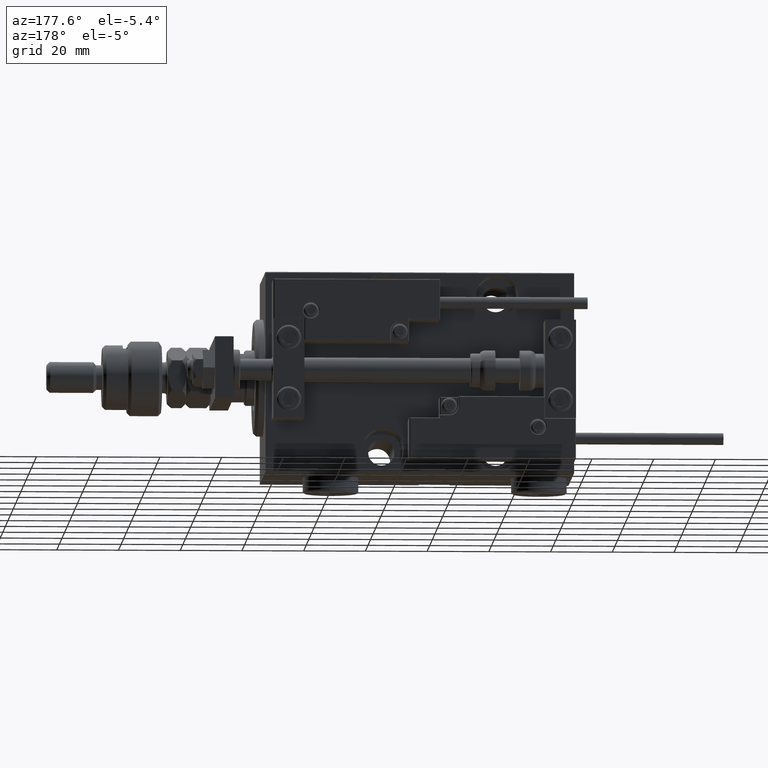
[diagram: clean part render]
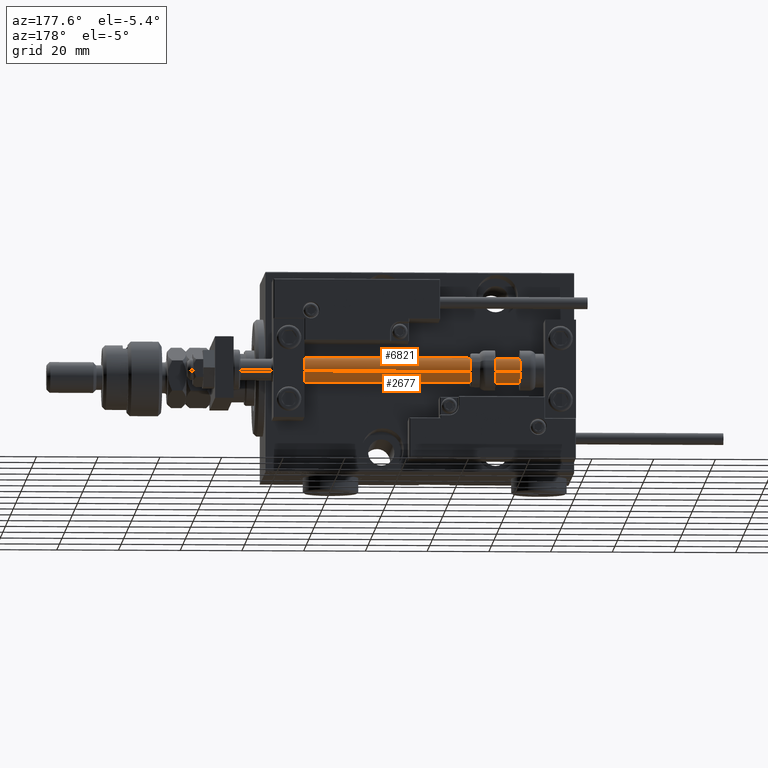
[diagram: same view with one multi-face feature highlighted, each face labeled with its STEP entity id]
A machine part, auxiliary view. The highlighted faces form ONE feature: a constant-radius fillet chain: 2 tangent blend faces with common blend radius 4 mm. The faces share edges in the B-rep.
Their STEP definitions:
[1] entity #6821 (Cylinder):
#342 = DIRECTION ( 'NONE',  ( -0.000000000000000000, -0.000000000000000000, 1.000000000000000000 ) ) ;
#662 = ORIENTED_EDGE ( 'NONE', *, *, #35240, .T. ) ;
#1305 = CARTESIAN_POINT ( 'NONE',  ( 4.000000000000000000, 4.898587196589412829E-16, 100.0000000000000000 ) ) ;
#2486 = DIRECTION ( 'NONE',  ( -0.000000000000000000, -0.000000000000000000, -1.000000000000000000 ) ) ;
#2565 = CARTESIAN_POINT ( 'NONE',  ( 4.000000000000000000, 4.898587196589412829E-16, 100.0000000000000000 ) ) ;
#3457 = VERTEX_POINT ( 'NONE', #48047 ) ;
#6481 = EDGE_CURVE ( 'NONE', #3457, #10838, #49209, .T. ) ;
#6821 = ADVANCED_FACE ( 'NONE', ( #36511 ), #40906, .T. ) ;
#7213 = DIRECTION ( 'NONE',  ( -0.000000000000000000, -0.000000000000000000, -1.000000000000000000 ) ) ;
#10838 = VERTEX_POINT ( 'NONE', #32742 ) ;
#11031 = CARTESIAN_POINT ( 'NONE',  ( -4.000000000000000000, 0.000000000000000000, 100.0000000000000000 ) ) ;
#11876 = AXIS2_PLACEMENT_3D ( 'NONE', #12099, #53020, #53825 ) ;
#12099 = CARTESIAN_POINT ( 'NONE',  ( 0.000000000000000000, 0.000000000000000000, 100.0000000000000000 ) ) ;
#13309 = EDGE_LOOP ( 'NONE', ( #35083, #48028, #23718, #662 ) ) ;
#15267 = VERTEX_POINT ( 'NONE', #20793 ) ;
#15605 = CARTESIAN_POINT ( 'NONE',  ( 0.000000000000000000, 0.000000000000000000, 100.0000000000000000 ) ) ;
#17323 = VECTOR ( 'NONE', #7213, 1000.000000000000000 ) ;
#20758 = CIRCLE ( 'NONE', #31259, 4.000000000000000000 ) ;
#20793 = CARTESIAN_POINT ( 'NONE',  ( 4.000000000000000000, 4.898587196589412829E-16, 2.000000000000029310 ) ) ;
#21690 = CARTESIAN_POINT ( 'NONE',  ( 0.000000000000000000, 0.000000000000000000, 2.000000000000029310 ) ) ;
#23718 = ORIENTED_EDGE ( 'NONE', *, *, #6481, .T. ) ;
#24031 = CIRCLE ( 'NONE', #11876, 4.000000000000000000 ) ;
#25078 = VECTOR ( 'NONE', #42223, 1000.000000000000000 ) ;
#28008 = DIRECTION ( 'NONE',  ( -1.000000000000000000, 0.000000000000000000, 0.000000000000000000 ) ) ;
#31259 = AXIS2_PLACEMENT_3D ( 'NONE', #21690, #342, #38470 ) ;
#32742 = CARTESIAN_POINT ( 'NONE',  ( -4.000000000000000000, 0.000000000000000000, 2.000000000000029310 ) ) ;
#33343 = EDGE_CURVE ( 'NONE', #36324, #15267, #51501, .T. ) ;
#35083 = ORIENTED_EDGE ( 'NONE', *, *, #33343, .F. ) ;
#35240 = EDGE_CURVE ( 'NONE', #10838, #15267, #20758, .T. ) ;
#36324 = VERTEX_POINT ( 'NONE', #2565 ) ;
#36511 = FACE_OUTER_BOUND ( 'NONE', #13309, .T. ) ;
#38470 = DIRECTION ( 'NONE',  ( 1.000000000000000000, 0.000000000000000000, 0.000000000000000000 ) ) ;
#40753 = EDGE_CURVE ( 'NONE', #3457, #36324, #24031, .T. ) ;
#40906 = CYLINDRICAL_SURFACE ( 'NONE', #44551, 4.000000000000000000 ) ;
#42223 = DIRECTION ( 'NONE',  ( -0.000000000000000000, -0.000000000000000000, -1.000000000000000000 ) ) ;
#44551 = AXIS2_PLACEMENT_3D ( 'NONE', #15605, #2486, #28008 ) ;
#48028 = ORIENTED_EDGE ( 'NONE', *, *, #40753, .F. ) ;
#48047 = CARTESIAN_POINT ( 'NONE',  ( -4.000000000000000000, 0.000000000000000000, 100.0000000000000000 ) ) ;
#49209 = LINE ( 'NONE', #11031, #17323 ) ;
#51501 = LINE ( 'NONE', #1305, #25078 ) ;
#53020 = DIRECTION ( 'NONE',  ( 0.000000000000000000, 0.000000000000000000, 1.000000000000000000 ) ) ;
#53825 = DIRECTION ( 'NONE',  ( 1.000000000000000000, 0.000000000000000000, 0.000000000000000000 ) ) ;
[2] entity #2677 (Cylinder):
#1305 = CARTESIAN_POINT ( 'NONE',  ( 4.000000000000000000, 4.898587196589412829E-16, 100.0000000000000000 ) ) ;
#2565 = CARTESIAN_POINT ( 'NONE',  ( 4.000000000000000000, 4.898587196589412829E-16, 100.0000000000000000 ) ) ;
#2677 = ADVANCED_FACE ( 'NONE', ( #21076 ), #41692, .T. ) ;
#3457 = VERTEX_POINT ( 'NONE', #48047 ) ;
#3475 = DIRECTION ( 'NONE',  ( 0.000000000000000000, 0.000000000000000000, 1.000000000000000000 ) ) ;
#4365 = DIRECTION ( 'NONE',  ( -1.000000000000000000, 0.000000000000000000, 0.000000000000000000 ) ) ;
#6481 = EDGE_CURVE ( 'NONE', #3457, #10838, #49209, .T. ) ;
#7213 = DIRECTION ( 'NONE',  ( -0.000000000000000000, -0.000000000000000000, -1.000000000000000000 ) ) ;
#8464 = CARTESIAN_POINT ( 'NONE',  ( 0.000000000000000000, 0.000000000000000000, 100.0000000000000000 ) ) ;
#10838 = VERTEX_POINT ( 'NONE', #32742 ) ;
#11031 = CARTESIAN_POINT ( 'NONE',  ( -4.000000000000000000, 0.000000000000000000, 100.0000000000000000 ) ) ;
#11888 = ORIENTED_EDGE ( 'NONE', *, *, #14951, .T. ) ;
#12227 = AXIS2_PLACEMENT_3D ( 'NONE', #29394, #40951, #53557 ) ;
#13458 = EDGE_CURVE ( 'NONE', #36324, #3457, #30524, .T. ) ;
#14951 = EDGE_CURVE ( 'NONE', #15267, #10838, #16604, .T. ) ;
#15267 = VERTEX_POINT ( 'NONE', #20793 ) ;
#16133 = DIRECTION ( 'NONE',  ( -0.000000000000000000, -0.000000000000000000, -1.000000000000000000 ) ) ;
#16604 = CIRCLE ( 'NONE', #12227, 4.000000000000000000 ) ;
#17323 = VECTOR ( 'NONE', #7213, 1000.000000000000000 ) ;
#20018 = AXIS2_PLACEMENT_3D ( 'NONE', #37219, #3475, #20183 ) ;
#20183 = DIRECTION ( 'NONE',  ( 1.000000000000000000, 0.000000000000000000, 0.000000000000000000 ) ) ;
#20793 = CARTESIAN_POINT ( 'NONE',  ( 4.000000000000000000, 4.898587196589412829E-16, 2.000000000000029310 ) ) ;
#21076 = FACE_OUTER_BOUND ( 'NONE', #28252, .T. ) ;
#25078 = VECTOR ( 'NONE', #42223, 1000.000000000000000 ) ;
#26000 = ORIENTED_EDGE ( 'NONE', *, *, #13458, .F. ) ;
#28252 = EDGE_LOOP ( 'NONE', ( #26000, #39005, #11888, #38455 ) ) ;
#29394 = CARTESIAN_POINT ( 'NONE',  ( 0.000000000000000000, 0.000000000000000000, 2.000000000000029310 ) ) ;
#29652 = AXIS2_PLACEMENT_3D ( 'NONE', #8464, #16133, #4365 ) ;
#30524 = CIRCLE ( 'NONE', #20018, 4.000000000000000000 ) ;
#32742 = CARTESIAN_POINT ( 'NONE',  ( -4.000000000000000000, 0.000000000000000000, 2.000000000000029310 ) ) ;
#33343 = EDGE_CURVE ( 'NONE', #36324, #15267, #51501, .T. ) ;
#36324 = VERTEX_POINT ( 'NONE', #2565 ) ;
#37219 = CARTESIAN_POINT ( 'NONE',  ( 0.000000000000000000, 0.000000000000000000, 100.0000000000000000 ) ) ;
#38455 = ORIENTED_EDGE ( 'NONE', *, *, #6481, .F. ) ;
#39005 = ORIENTED_EDGE ( 'NONE', *, *, #33343, .T. ) ;
#40951 = DIRECTION ( 'NONE',  ( -0.000000000000000000, -0.000000000000000000, 1.000000000000000000 ) ) ;
#41692 = CYLINDRICAL_SURFACE ( 'NONE', #29652, 4.000000000000000000 ) ;
#42223 = DIRECTION ( 'NONE',  ( -0.000000000000000000, -0.000000000000000000, -1.000000000000000000 ) ) ;
#48047 = CARTESIAN_POINT ( 'NONE',  ( -4.000000000000000000, 0.000000000000000000, 100.0000000000000000 ) ) ;
#49209 = LINE ( 'NONE', #11031, #17323 ) ;
#51501 = LINE ( 'NONE', #1305, #25078 ) ;
#53557 = DIRECTION ( 'NONE',  ( 1.000000000000000000, 0.000000000000000000, 0.000000000000000000 ) ) ;